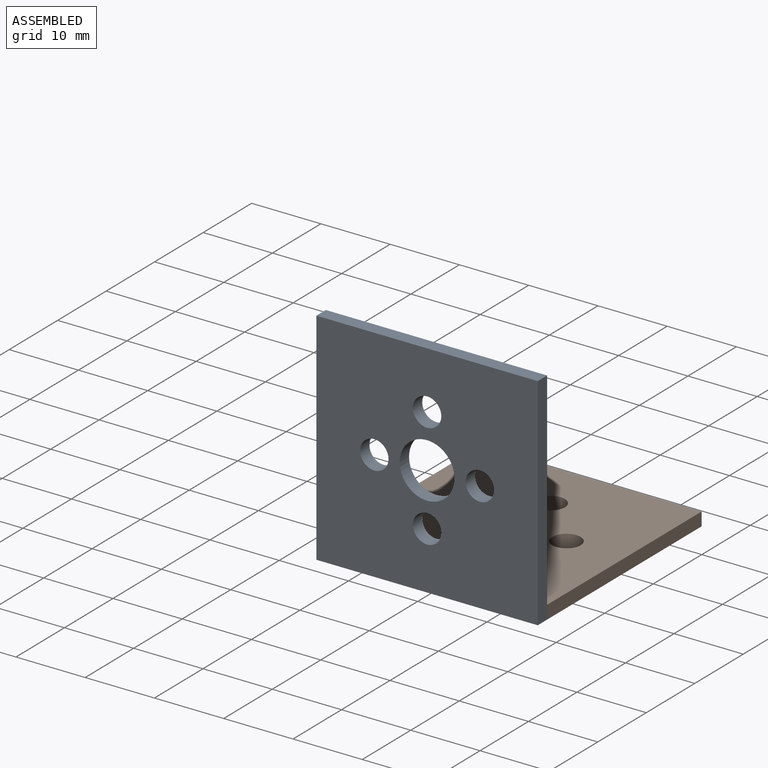
[diagram: assembled view]
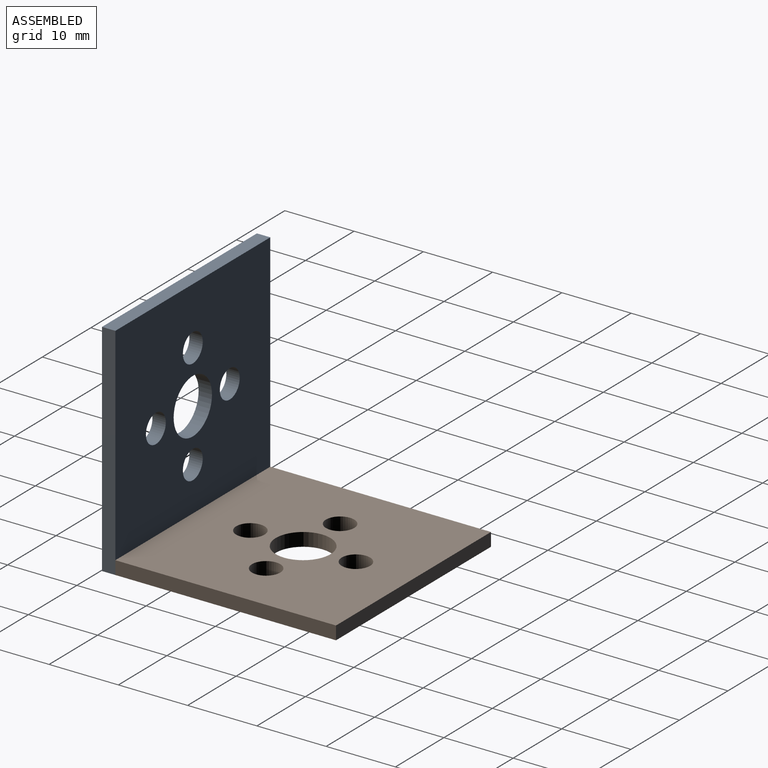
[diagram: assembled view, second angle]
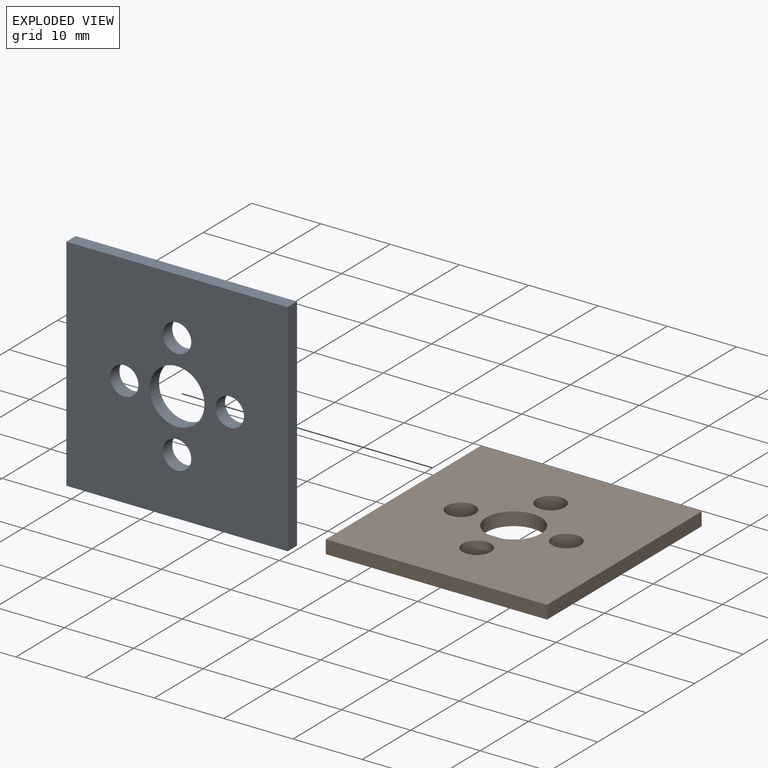
[diagram: exploded view]
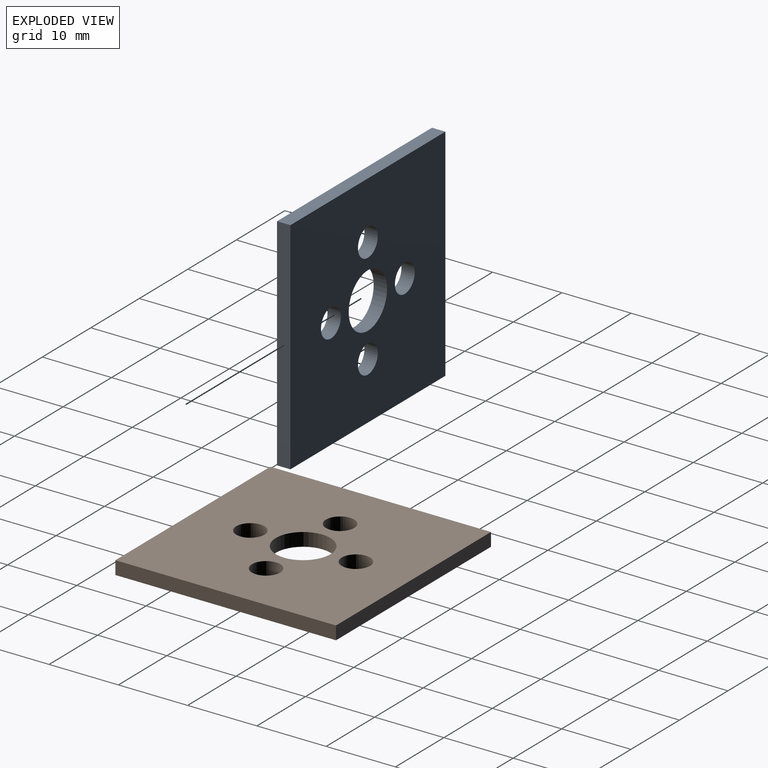
[diagram: exploded view, second angle]
ASSEMBLY  parts=2 mates=2
PART A: 11 faces, bbox 32x1.9x31.9 mm
  f0: plane 31.86x1.93mm, normal (1,0,0), area 61.5mm2, adj f1,f8,f9,f10
  f1: plane 31.95x1.93mm, normal (0,0,1), area 61.7mm2, adj f0,f2,f9,f10
  f2: plane 31.86x1.93mm, normal (-1,0,0), area 61.5mm2, adj f1,f8,f9,f10
  f3: cylinder r=3.96mm len=7.91mm, axis (0,1,0), area 48mm2, adj f9,f10
  f4: cylinder r=2.05mm len=4.1mm, axis (0,1,0), area 24.9mm2, adj f9,f10
  f5: cylinder r=2.05mm len=4.1mm, axis (0,1,0), area 24.9mm2, adj f9,f10
  f6: cylinder r=2.05mm len=4.1mm, axis (0,1,0), area 24.9mm2, adj f9,f10
  f7: cylinder r=2.05mm len=4.1mm, axis (0,1,0), area 24.9mm2, adj f9,f10
  f8: plane 31.95x1.93mm, normal (0,0,-1), area 61.7mm2, adj f0,f2,f9,f10
  f9: plane 31.95x31.86mm, normal (0,-1,0), area 916mm2, adj f0,f1,f2,f3,f4,f5,f6,f7
  f10: plane 31.95x31.86mm, normal (0,1,0), area 916mm2, adj f0,f1,f2,f3,f4,f5,f6,f7
PART B: 11 faces, bbox 32x31.9x1.9 mm
  f0: plane 31.86x1.93mm, normal (-1,0,0), area 61.5mm2, adj f1,f7,f9,f10
  f1: plane 31.95x1.93mm, normal (0,1,0), area 61.7mm2, adj f0,f2,f9,f10
  f2: plane 31.86x1.93mm, normal (1,0,0), area 61.5mm2, adj f1,f7,f9,f10
  f3: cylinder r=2.05mm len=4.1mm, axis (0,0,1), area 24.9mm2, adj f9,f10
  f4: cylinder r=2.05mm len=4.1mm, axis (0,0,1), area 24.9mm2, adj f9,f10
  f5: cylinder r=2.05mm len=4.1mm, axis (0,0,1), area 24.9mm2, adj f9,f10
  f6: cylinder r=2.05mm len=4.1mm, axis (0,0,1), area 24.9mm2, adj f9,f10
  f7: plane 31.95x1.93mm, normal (0,-1,0), area 61.7mm2, adj f0,f2,f9,f10
  f8: cylinder r=3.96mm len=7.91mm, axis (0,0,1), area 48mm2, adj f9,f10
  f9: plane 31.95x31.86mm, normal (0,0,-1), area 916mm2, adj f0,f1,f2,f3,f4,f5,f6,f7
  f10: plane 31.95x31.86mm, normal (0,0,1), area 916mm2, adj f0,f1,f2,f3,f4,f5,f6,f7
PLACE A t=(-29.47,-6.89,-35.55)mm
PLACE B t=(-29.47,-4.96,-33.62)mm
MATE slider A.f0 <-> B.f2  axis (1,0,0) through (-13.5,-6.89,-51.48)mm
MATE slider B.f9 <-> A.f8  axis (0,0,1) through (-13.5,-6.89,-51.48)mm
